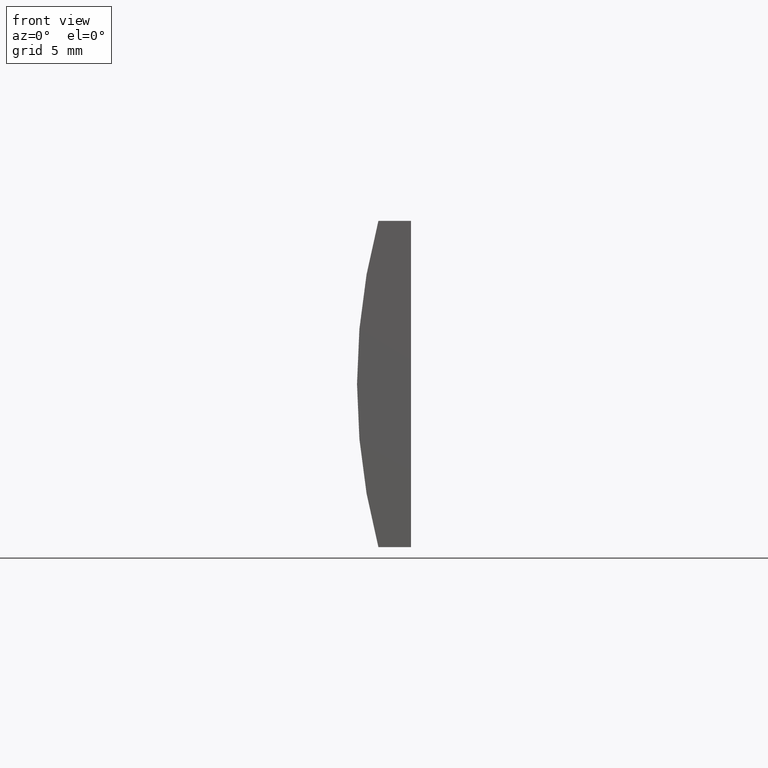
[diagram: clean part render]
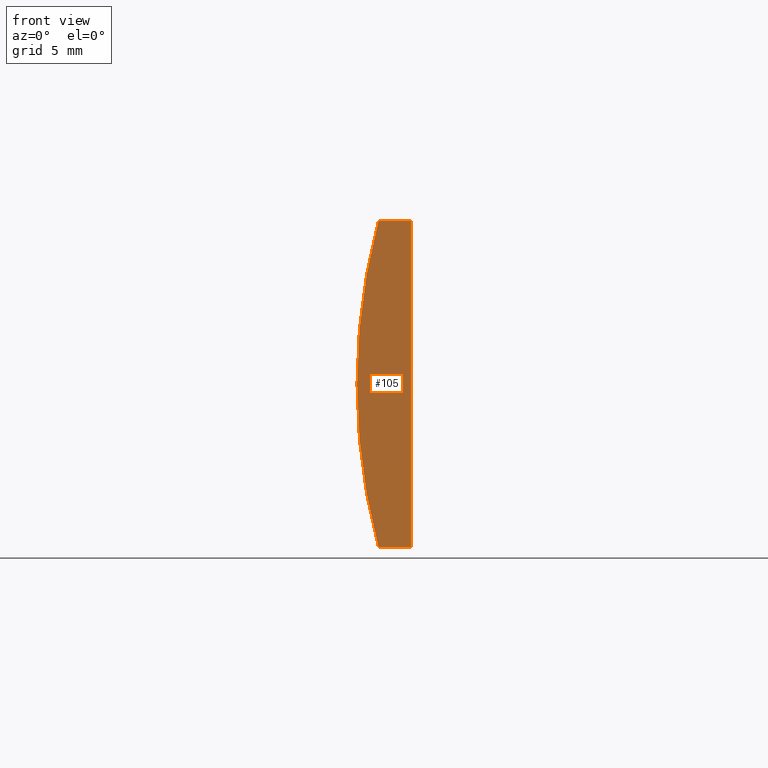
[diagram: same view with one face highlighted and labeled with its STEP entity id]
A machine part, front view. The second image highlights one B-rep face of the part: STEP entity #105.
In plain terms, the highlighted planar face has unit normal (0, 1, 0).
Its self-contained STEP definition (entity closure, byte-faithful):
#2 = VECTOR ( 'NONE', #48, 1000.000000000000000 ) ;
#4 = CARTESIAN_POINT ( 'NONE',  ( -33.11329443411465000, 0.0000000000000000000, -10.00000000000000000 ) ) ;
#6 = ORIENTED_EDGE ( 'NONE', *, *, #39, .F. ) ;
#12 = CARTESIAN_POINT ( 'NONE',  ( -31.11479566514874100, 0.0000000000000000000, -9.999999999999992900 ) ) ;
#20 = CARTESIAN_POINT ( 'NONE',  ( -33.11329443411465000, 0.0000000000000000000, 10.00000000000000000 ) ) ;
#22 = VERTEX_POINT ( 'NONE', #4 ) ;
#26 = VERTEX_POINT ( 'NONE', #77 ) ;
#39 = EDGE_CURVE ( 'NONE', #22, #60, #108, .T. ) ;
#44 = DIRECTION ( 'NONE',  ( 0.0000000000000000000, 1.000000000000000000, 0.0000000000000000000 ) ) ;
#48 = DIRECTION ( 'NONE',  ( -1.000000000000000000, -0.0000000000000000000, -3.472053128908184100E-015 ) ) ;
#51 = PLANE ( 'NONE',  #162 ) ;
#60 = VERTEX_POINT ( 'NONE', #20 ) ;
#63 = EDGE_LOOP ( 'NONE', ( #6, #173, #131, #79 ) ) ;
#77 = CARTESIAN_POINT ( 'NONE',  ( -31.11479566514873700, 0.0000000000000000000, 10.00000000000000000 ) ) ;
#79 = ORIENTED_EDGE ( 'NONE', *, *, #167, .F. ) ;
#105 = ADVANCED_FACE ( 'NONE', ( #121 ), #51, .F. ) ;
#106 = VERTEX_POINT ( 'NONE', #12 ) ;
#108 = CIRCLE ( 'NONE', #133, 38.78000000000000100 ) ;
#110 = VECTOR ( 'NONE', #135, 1000.000000000000000 ) ;
#121 = FACE_OUTER_BOUND ( 'NONE', #63, .T. ) ;
#123 = EDGE_CURVE ( 'NONE', #26, #106, #153, .T. ) ;
#128 = DIRECTION ( 'NONE',  ( 0.0000000000000000000, 0.0000000000000000000, 1.000000000000000000 ) ) ;
#129 = DIRECTION ( 'NONE',  ( 0.0000000000000000000, -0.0000000000000000000, 1.000000000000000000 ) ) ;
#131 = ORIENTED_EDGE ( 'NONE', *, *, #123, .F. ) ;
#132 = CARTESIAN_POINT ( 'NONE',  ( -33.11329443411465000, 0.0000000000000000000, -10.00000000000000000 ) ) ;
#133 = AXIS2_PLACEMENT_3D ( 'NONE', #169, #142, #128 ) ;
#134 = DIRECTION ( 'NONE',  ( 1.000000000000000000, 0.0000000000000000000, 0.0000000000000000000 ) ) ;
#135 = DIRECTION ( 'NONE',  ( -3.469446951953615200E-016, -0.0000000000000000000, -1.000000000000000000 ) ) ;
#138 = CARTESIAN_POINT ( 'NONE',  ( 4.355204334851265500, 0.0000000000000000000, 4.286263797015675000E-017 ) ) ;
#142 = DIRECTION ( 'NONE',  ( 0.0000000000000000000, 1.000000000000000000, 0.0000000000000000000 ) ) ;
#146 = LINE ( 'NONE', #132, #2 ) ;
#153 = LINE ( 'NONE', #161, #110 ) ;
#161 = CARTESIAN_POINT ( 'NONE',  ( -31.11479566514874100, 0.0000000000000000000, -9.999999999999992900 ) ) ;
#162 = AXIS2_PLACEMENT_3D ( 'NONE', #138, #44, #129 ) ;
#165 = CARTESIAN_POINT ( 'NONE',  ( -33.11329443411465000, 0.0000000000000000000, 10.00000000000000000 ) ) ;
#167 = EDGE_CURVE ( 'NONE', #60, #26, #174, .T. ) ;
#169 = CARTESIAN_POINT ( 'NONE',  ( 4.355204334851265500, 0.0000000000000000000, 4.286263797015675000E-017 ) ) ;
#173 = ORIENTED_EDGE ( 'NONE', *, *, #196, .F. ) ;
#174 = LINE ( 'NONE', #165, #194 ) ;
#194 = VECTOR ( 'NONE', #134, 1000.000000000000000 ) ;
#196 = EDGE_CURVE ( 'NONE', #106, #22, #146, .T. ) ;